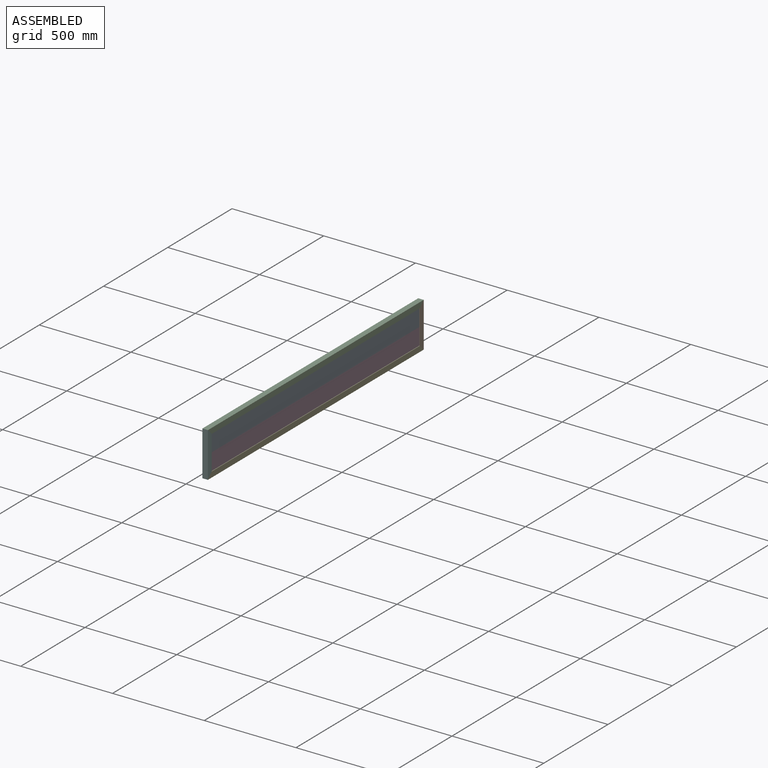
[diagram: assembled view]
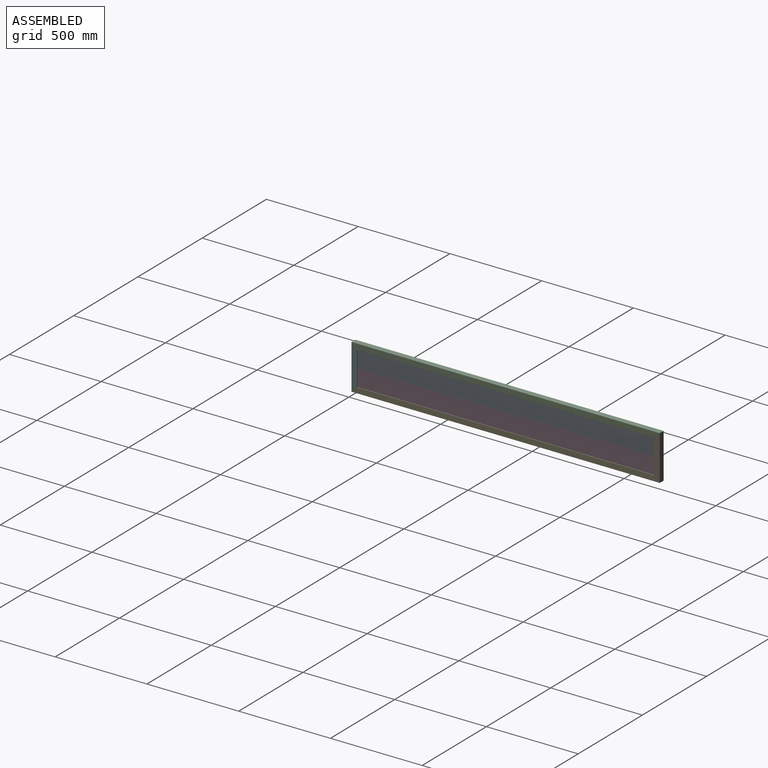
[diagram: assembled view, second angle]
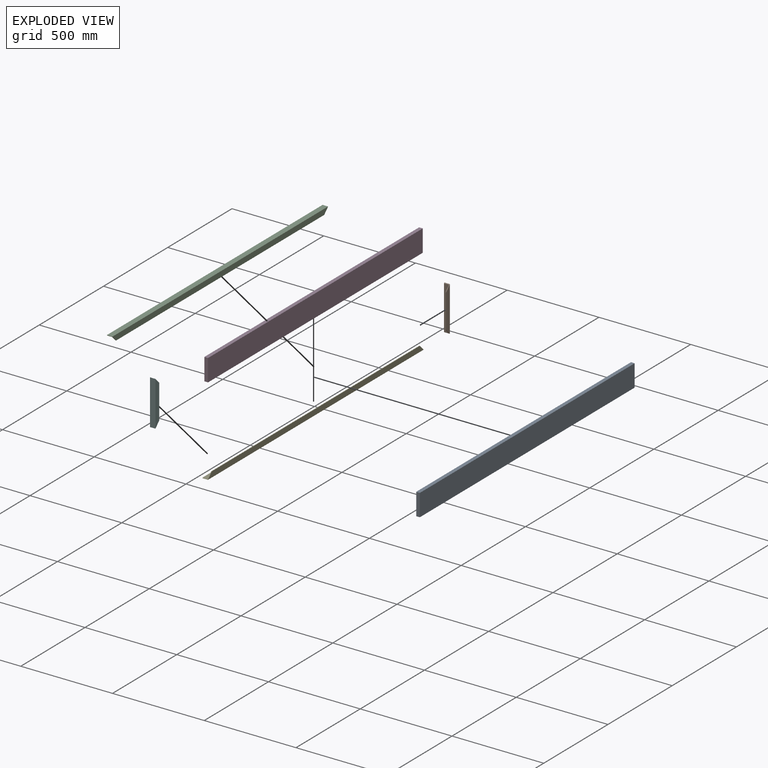
[diagram: exploded view]
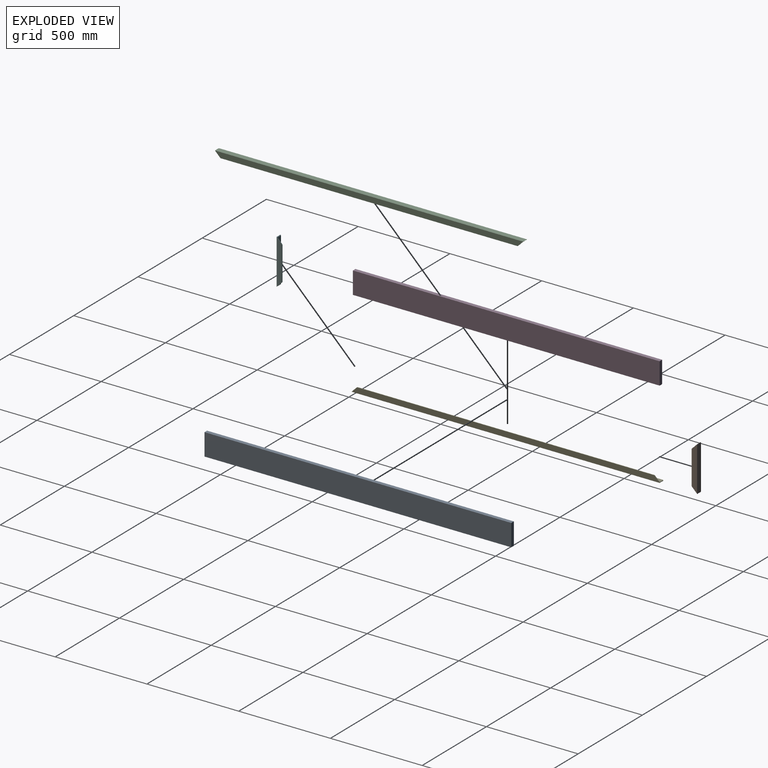
[diagram: exploded view, second angle]
ASSEMBLY  parts=6 mates=5
PART A: 6 faces, bbox 20x1672x120 mm
  f0: plane 1672x20mm, normal (0,0,1), area 33440mm2, adj f1,f3,f4,f5
  f1: plane 1672x120mm, normal (-1,0,0), area 200640mm2, adj f0,f2,f4,f5
  f2: plane 1672x20mm, normal (0,0,-1), area 33440mm2, adj f1,f3,f4,f5
  f3: plane 1672x120mm, normal (1,0,0), area 200640mm2, adj f0,f2,f4,f5
  f4: plane 120x20mm, normal (0,1,0), area 2400mm2, adj f0,f1,f2,f3
  f5: plane 120x20mm, normal (0,-1,0), area 2400mm2, adj f0,f1,f2,f3
PART B: 8 faces, bbox 30x30x245 mm
  f0: plane 245x30mm, normal (1,0,0), area 6450mm2, adj f1,f5,f6,f7
  f1: plane 185x3mm, normal (0,1,0), area 555mm2, adj f0,f4,f6,f7
  f2: plane 239x27mm, normal (0,1,0), area 6453mm2, adj f3,f4,f6,f7
  f3: plane 245x3mm, normal (-1,0,0), area 726mm2, adj f2,f5,f6,f7
  f4: plane 239x27mm, normal (-1,0,0), area 5724mm2, adj f1,f2,f6,f7
  f5: plane 245x30mm, normal (0,-1,0), area 7350mm2, adj f0,f3,f6,f7
  f6: plane 30x30mm, normal (0,0.71,-0.71), area 241.8mm2, adj f0,f1,f2,f3,f4,f5
  f7: plane 30x30mm, normal (0,0.71,0.71), area 241.8mm2, adj f0,f1,f2,f3,f4,f5
PART C: 8 faces, bbox 30x1680x30 mm
  f0: plane 1620x3mm, normal (0,0,-1), area 4860mm2, adj f1,f4,f6,f7
  f1: plane 1674x27mm, normal (-1,0,0), area 44469mm2, adj f0,f3,f6,f7
  f2: plane 1680x3mm, normal (-1,0,0), area 5031mm2, adj f3,f5,f6,f7
  f3: plane 1674x27mm, normal (0,0,-1), area 45198mm2, adj f1,f2,f6,f7
  f4: plane 1680x30mm, normal (1,0,0), area 49500mm2, adj f0,f5,f6,f7
  f5: plane 1680x30mm, normal (0,0,1), area 50400mm2, adj f2,f4,f6,f7
  f6: plane 30x30mm, normal (0,-0.71,-0.71), area 241.8mm2, adj f0,f1,f2,f3,f4,f5
  f7: plane 30x30mm, normal (0,0.71,-0.71), area 241.8mm2, adj f0,f1,f2,f3,f4,f5
PART D: same geometry as A
PART E: same geometry as C
PART F: same geometry as B
PLACE A t=(72.15,-764.56,307.52)mm
PLACE B rot(axis=(1,0,0),180deg) t=(-24.21,612.89,299.68)mm
PLACE C t=(162.1,-769.56,430.25)mm
PLACE D t=(72.15,-764.56,187.52)mm
PLACE E rot(axis=(1,0,0),180deg) t=(162.1,910.44,-75.9)mm
PLACE F t=(-24.21,-472.02,54.68)mm
MATE fastened D.f0 <-> A.f2  axis (0,0,1) through (-194.72,907.44,176.68)mm
MATE fastened F.f7 <-> C.f6  axis (0,0.71,0.71) through (-194.72,-766.56,296.68)mm
MATE fastened E.f7 <-> F.f6  axis (0,-0.71,0.71) through (-194.72,-766.56,57.68)mm
MATE fastened B.f6 <-> C.f7  axis (0,-0.71,0.71) through (-194.72,907.44,296.68)mm
MATE fastened A.f4 <-> B.f2  axis (0,1,0) through (-194.72,907.44,296.68)mm
